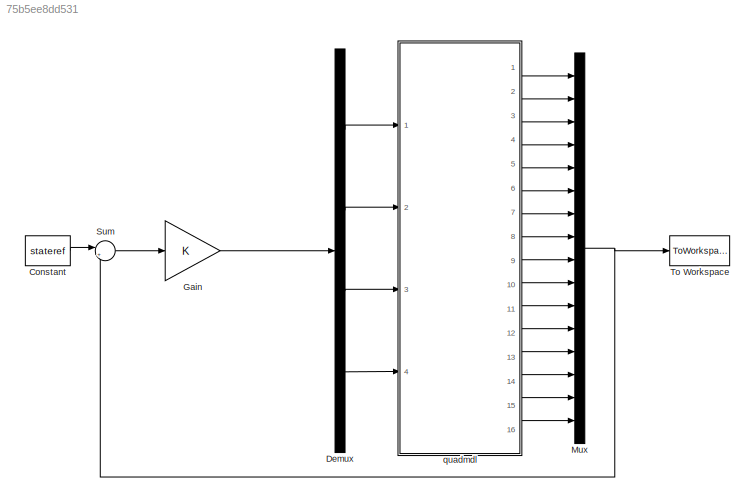
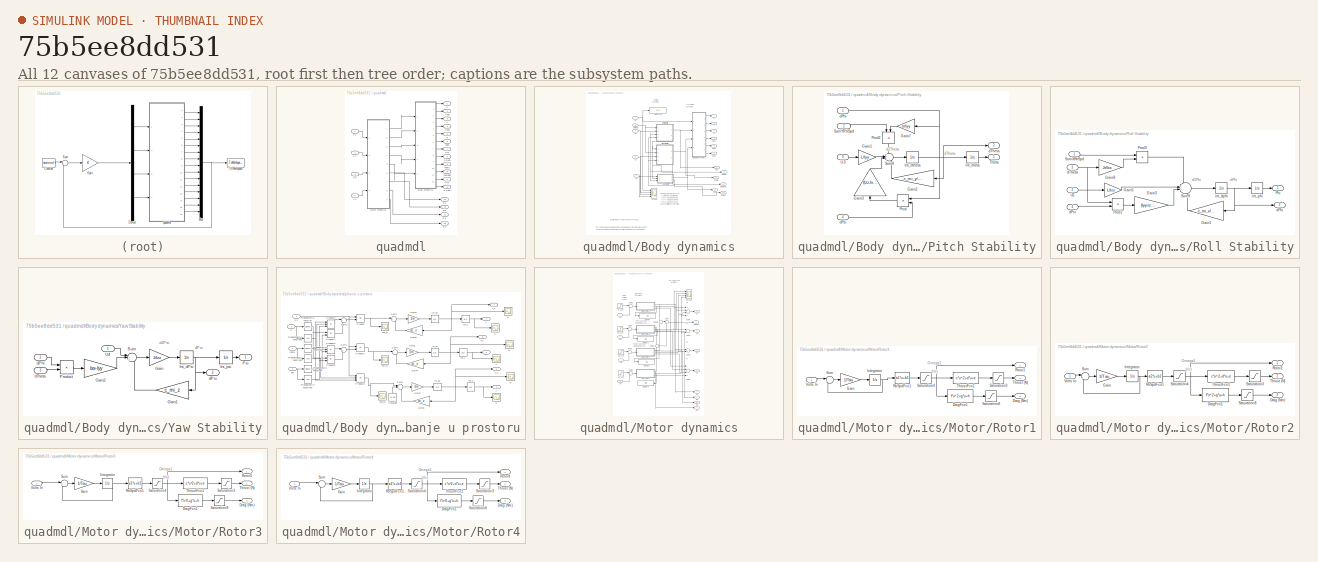
[diagram: thumbnail index - all 12 canvases of the model, root first then tree order]
MODEL slx_75b5ee8dd531
KIND model
CONFIG AbsTol = auto
CONFIG EnableMultiTasking = on
CONFIG FixedStep = auto
CONFIG MaxStep = auto
CONFIG MinStep = auto
CONFIG RelTol = 1e-3
CONFIG SampleTimeConstraint = Unconstrained
CONFIG Solver = ode45
CONFIG SolverName = ode45
CONFIG StartTime = 0.0
CONFIG StopTime = 100
BLOCK [Constant] Constant
  Value = stateref
BLOCK [Demux] Demux
  DisplayOption = bar
  Ports = [1, 4]
BLOCK [Gain] Gain
  Gain = K
  Multiplication = Matrix(K*u) (u vector)
  OutDataTypeStr = Inherit: Inherit via internal rule
  ParamDataTypeStr = Inherit: Inherit via internal rule
  SaturateOnIntegerOverflow = off
BLOCK [Mux] Mux
  DisplayOption = bar
  Inputs = 16
  Ports = [16, 1]
BLOCK [Sum] Sum
  IconShape = round
  InputSameDT = off
  Inputs = |+-
  OutDataTypeStr = Inherit: Inherit via internal rule
  Ports = [2, 1]
  SaturateOnIntegerOverflow = off
BLOCK [ToWorkspace] To Workspace
  FixptAsFi = on
  MaxDataPoints = inf
  Ports = [1]
  SampleTime = -1
  Save2DSignal = 3-D array (concatenate along third dimension)
  SaveFormat = Timeseries
  VariableName = state
BLOCK [SubSystem] quadmdl
  Ports = [4, 16]
  RequestExecContextInheritance = off
  Variant = off
BLOCK [SubSystem] quadmdl/Body dynamics
  Ports = [5, 12]
  RequestExecContextInheritance = off
  Variant = off
BLOCK [Inport] quadmdl/Body dynamics/Omega
  IconDisplay = Port number
  Port = 5
BLOCK [Outport] quadmdl/Body dynamics/Phi
  IconDisplay = Port number
  Port = 7
BLOCK [SubSystem] quadmdl/Body dynamics/Pitch Stability
  Ports = [4, 2]
  RequestExecContextInheritance = off
  Variant = off
BLOCK [Gain] quadmdl/Body dynamics/Pitch Stability/Gain1
  Gain = L/Iyy
  OutDataTypeStr = Inherit: Inherit via internal rule
  ParamDataTypeStr = Inherit: Inherit via internal rule
  SaturateOnIntegerOverflow = off
BLOCK [Gain] quadmdl/Body dynamics/Pitch Stability/Gain2
  Gain = c_mi_y/Iyy
  OutDataTypeStr = Inherit: Inherit via internal rule
  ParamDataTypeStr = Inherit: Inherit via internal rule
  SaturateOnIntegerOverflow = off
BLOCK [Gain] quadmdl/Body dynamics/Pitch Stability/Gain3
  Gain = (Izz-Ixx)/Iyy
  OutDataTypeStr = Inherit: Inherit via internal rule
  ParamDataTypeStr = Inherit: Inherit via internal rule
  SaturateOnIntegerOverflow = off
BLOCK [Gain] quadmdl/Body dynamics/Pitch Stability/Gain7
  Gain = Jr/Iyy
  OutDataTypeStr = Inherit: Inherit via internal rule
  ParamDataTypeStr = Inherit: Inherit via internal rule
  SaturateOnIntegerOverflow = off
BLOCK [Integrator] quadmdl/Body dynamics/Pitch Stability/Int_dtheta
  InitialCondition = dtheta_0
  Ports = [1, 1]
BLOCK [Integrator] quadmdl/Body dynamics/Pitch Stability/Int_theta
  InitialCondition = theta_0
  LowerSaturationLimit = -pi/2
  Ports = [1, 1]
  UpperSaturationLimit = pi/2
BLOCK [Product] quadmdl/Body dynamics/Pitch Stability/Prod
  InputSameDT = off
  OutDataTypeStr = Inherit: Inherit via internal rule
  Ports = [2, 1]
  SaturateOnIntegerOverflow = off
BLOCK [Product] quadmdl/Body dynamics/Pitch Stability/Prod2
  InputSameDT = off
  OutDataTypeStr = Inherit: Inherit via internal rule
  Ports = [2, 1]
  SaturateOnIntegerOverflow = off
BLOCK [Sum] quadmdl/Body dynamics/Pitch Stability/Sum8
  IconShape = round
  InputSameDT = off
  Inputs = +++-
  OutDataTypeStr = Inherit: Inherit via internal rule
  Ports = [4, 1]
  SaturateOnIntegerOverflow = off
BLOCK [Inport] quadmdl/Body dynamics/Pitch Stability/SumYRtrSpd
  IconDisplay = Port number
  Port = 2
BLOCK [Outport] quadmdl/Body dynamics/Pitch Stability/Theta
  IconDisplay = Port number
BLOCK [Inport] quadmdl/Body dynamics/Pitch Stability/U3
  IconDisplay = Port number
  Port = 3
BLOCK [Inport] quadmdl/Body dynamics/Pitch Stability/dPhi
  IconDisplay = Port number
BLOCK [Inport] quadmdl/Body dynamics/Pitch Stability/dPsi
  IconDisplay = Port number
  Port = 4
BLOCK [Outport] quadmdl/Body dynamics/Pitch Stability/dTheta
  IconDisplay = Port number
  Port = 2
BLOCK [Outport] quadmdl/Body dynamics/Psi
  IconDisplay = Port number
  Port = 11
BLOCK [SubSystem] quadmdl/Body dynamics/Roll Stability
  Ports = [4, 2]
  RequestExecContextInheritance = off
  Variant = off
BLOCK [Gain] quadmdl/Body dynamics/Roll Stability/Gain1
  Gain = c_mi_x/Ixx
  OutDataTypeStr = Inherit: Inherit via internal rule
  ParamDataTypeStr = Inherit: Inherit via internal rule
  SaturateOnIntegerOverflow = off
BLOCK [Gain] quadmdl/Body dynamics/Roll Stability/Gain3
  Gain = (Iyy-Izz)/Ixx
  OutDataTypeStr = Inherit: Inherit via internal rule
  ParamDataTypeStr = Inherit: Inherit via internal rule
  SaturateOnIntegerOverflow = off
BLOCK [Gain] quadmdl/Body dynamics/Roll Stability/Gain5
  Gain = L/Ixx
  OutDataTypeStr = Inherit: Inherit via internal rule
  ParamDataTypeStr = Inherit: Inherit via internal rule
  SaturateOnIntegerOverflow = off
BLOCK [Gain] quadmdl/Body dynamics/Roll Stability/Gain8
  Gain = Jr/Ixx
  OutDataTypeStr = Inherit: Inherit via internal rule
  ParamDataTypeStr = Inherit: Inherit via internal rule
  SaturateOnIntegerOverflow = off
BLOCK [Outport] quadmdl/Body dynamics/Roll Stability/Phi
  IconDisplay = Port number
BLOCK [Product] quadmdl/Body dynamics/Roll Stability/Prod1
  InputSameDT = off
  OutDataTypeStr = Inherit: Inherit via internal rule
  Ports = [2, 1]
  SaturateOnIntegerOverflow = off
BLOCK [Product] quadmdl/Body dynamics/Roll Stability/Prod3
  InputSameDT = off
  OutDataTypeStr = Inherit: Inherit via internal rule
  Ports = [2, 1]
  SaturateOnIntegerOverflow = off
BLOCK [Sum] quadmdl/Body dynamics/Roll Stability/Sum9
  IconShape = round
  InputSameDT = off
  Inputs = -++-
  OutDataTypeStr = Inherit: Inherit via internal rule
  Ports = [4, 1]
  SaturateOnIntegerOverflow = off
BLOCK [Inport] quadmdl/Body dynamics/Roll Stability/SumXRtrSpd
  IconDisplay = Port number
BLOCK [Inport] quadmdl/Body dynamics/Roll Stability/U2
  IconDisplay = Port number
  Port = 2
BLOCK [Outport] quadmdl/Body dynamics/Roll Stability/dPhi
  IconDisplay = Port number
  Port = 2
BLOCK [Inport] quadmdl/Body dynamics/Roll Stability/dPsi
  IconDisplay = Port number
  Port = 4
BLOCK [Inport] quadmdl/Body dynamics/Roll Stability/dTheta
  IconDisplay = Port number
  Port = 3
BLOCK [Integrator] quadmdl/Body dynamics/Roll Stability/int_dphi
  InitialCondition = dfi_0
  Ports = [1, 1]
BLOCK [Integrator] quadmdl/Body dynamics/Roll Stability/int_phi
  InitialCondition = fi_0
  LowerSaturationLimit = -pi/2
  Ports = [1, 1]
  UpperSaturationLimit = pi/2
BLOCK [Outport] quadmdl/Body dynamics/Theta
  IconDisplay = Port number
  Port = 9
BLOCK [Scope] quadmdl/Body dynamics/Torque
  NumInputPorts = 4
  Ports = [4]
  ScopeSpecificationString = C++SS(StrPVP('Location','[772, 74, 1096, 662]'),StrPVP('Open','off'),StrPVP('ZoomMode','yonly'),MxPVP('AxesTitles',53,'struct(''axes1'',''%<SignalLabel>'',''axes2'',''%<SignalLabel>'',''axes3'',''%<SignalLabel>'',''axes4'',''%<SignalLabel>'')'),StrPVP('YMin','4.9725~-5~-5~-5'),StrPVP('YMax','5.015~5~5~5'),StrPVP('SaveName','ScopeData17'),StrPVP('DataFormat','StructureWithTime'),StrPVP('LimitDataPo...<+111ch>
BLOCK [Display] quadmdl/Body dynamics/TotalThrust
  Decimation = 1
  Ports = [1]
BLOCK [Inport] quadmdl/Body dynamics/U1
  IconDisplay = Port number
BLOCK [Inport] quadmdl/Body dynamics/U2
  IconDisplay = Port number
  Port = 2
BLOCK [Inport] quadmdl/Body dynamics/U3
  IconDisplay = Port number
  Port = 3
BLOCK [Inport] quadmdl/Body dynamics/U4
  IconDisplay = Port number
  Port = 4
BLOCK [SubSystem] quadmdl/Body dynamics/Yaw Stability
  Ports = [3, 2]
  RequestExecContextInheritance = off
  Variant = off
BLOCK [Gain] quadmdl/Body dynamics/Yaw Stability/Gain
  Gain = 1/Izz
  OutDataTypeStr = Inherit: Inherit via internal rule
  ParamDataTypeStr = Inherit: Inherit via internal rule
  SaturateOnIntegerOverflow = off
BLOCK [Gain] quadmdl/Body dynamics/Yaw Stability/Gain1
  Gain = c_mi_z
  OutDataTypeStr = Inherit: Inherit via internal rule
  ParamDataTypeStr = Inherit: Inherit via internal rule
  SaturateOnIntegerOverflow = off
BLOCK [Gain] quadmdl/Body dynamics/Yaw Stability/Gain2
  Gain = Ixx-Iyy
  OutDataTypeStr = Inherit: Inherit via internal rule
  ParamDataTypeStr = Inherit: Inherit via internal rule
  SaturateOnIntegerOverflow = off
BLOCK [Integrator] quadmdl/Body dynamics/Yaw Stability/Int_dPsi
  InitialCondition = dpsi_0
  Ports = [1, 1]
BLOCK [Integrator] quadmdl/Body dynamics/Yaw Stability/Int_psi
  InitialCondition = psi_0
  Ports = [1, 1]
BLOCK [Product] quadmdl/Body dynamics/Yaw Stability/Product
  InputSameDT = off
  OutDataTypeStr = Inherit: Inherit via internal rule
  Ports = [2, 1]
  SaturateOnIntegerOverflow = off
BLOCK [Outport] quadmdl/Body dynamics/Yaw Stability/Psi
  IconDisplay = Port number
BLOCK [Sum] quadmdl/Body dynamics/Yaw Stability/Sum
  IconShape = round
  InputSameDT = off
  Inputs = |++-
  OutDataTypeStr = Inherit: Inherit via internal rule
  Ports = [3, 1]
  SaturateOnIntegerOverflow = off
BLOCK [Inport] quadmdl/Body dynamics/Yaw Stability/U4
  IconDisplay = Port number
BLOCK [Inport] quadmdl/Body dynamics/Yaw Stability/dPhi
  IconDisplay = Port number
  Port = 2
BLOCK [Outport] quadmdl/Body dynamics/Yaw Stability/dPsi
  IconDisplay = Port number
  Port = 2
BLOCK [Inport] quadmdl/Body dynamics/Yaw Stability/dTheta
  IconDisplay = Port number
  Port = 3
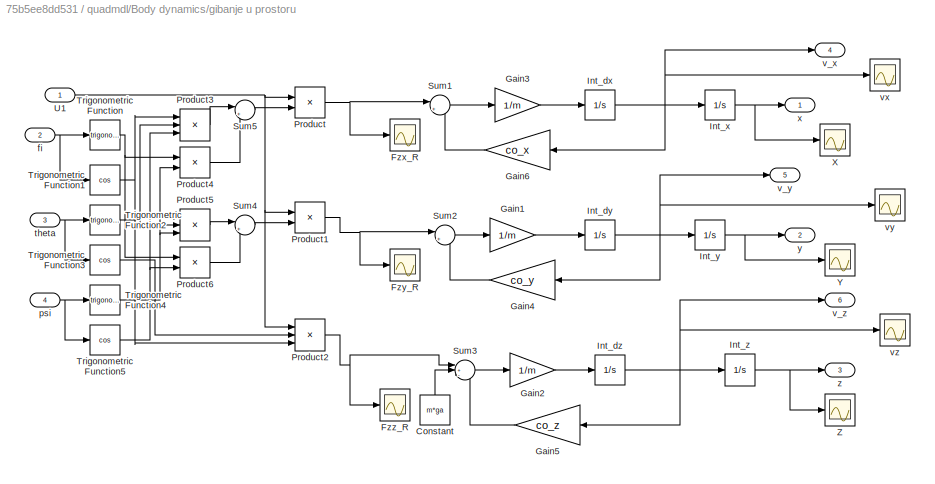
BLOCK [SubSystem] quadmdl/Body dynamics/gibanje u prostoru
  Ports = [4, 6]
  RequestExecContextInheritance = off
  Variant = off
BLOCK [Constant] quadmdl/Body dynamics/gibanje u prostoru/Constant
  Value = m*ga
BLOCK [Scope] quadmdl/Body dynamics/gibanje u prostoru/Fzx_R
  NumInputPorts = 1
  Ports = [1]
  ScopeSpecificationString = C++SS(StrPVP('Location','[188, 355, 512, 594]'),StrPVP('Open','off'),StrPVP('ZoomMode','xonly'),MxPVP('AxesTitles',53,'struct(''axes1'',''%<SignalLabel>'')'),StrPVP('SaveName','ScopeData10'),StrPVP('DataFormat','StructureWithTime'),StrPVP('LimitDataPoints','off'),StrPVP('BlockParamSampleTime','0'),StrPVP('Decimation','1'),StrPVP('BlockParamSampleInput','off'))
BLOCK [Scope] quadmdl/Body dynamics/gibanje u prostoru/Fzy_R
  NumInputPorts = 1
  Ports = [1]
  ScopeSpecificationString = C++SS(StrPVP('Location','[178, 355, 502, 594]'),StrPVP('Open','off'),StrPVP('ZoomMode','xonly'),MxPVP('AxesTitles',53,'struct(''axes1'',''%<SignalLabel>'')'),StrPVP('SaveName','ScopeData24'),StrPVP('DataFormat','StructureWithTime'),StrPVP('LimitDataPoints','off'),StrPVP('BlockParamSampleTime','0'),StrPVP('Decimation','1'),StrPVP('BlockParamSampleInput','off'))
BLOCK [Scope] quadmdl/Body dynamics/gibanje u prostoru/Fzz_R
  NumInputPorts = 1
  Ports = [1]
  ScopeSpecificationString = C++SS(StrPVP('Location','[108, 519, 432, 758]'),StrPVP('Open','off'),StrPVP('ZoomMode','yonly'),MxPVP('AxesTitles',53,'struct(''axes1'',''%<SignalLabel>'')'),StrPVP('YMin','4.9725'),StrPVP('YMax','5.015'),StrPVP('SaveName','ScopeData23'),StrPVP('DataFormat','StructureWithTime'),StrPVP('LimitDataPoints','off'),StrPVP('BlockParamSampleTime','0'),StrPVP('Decimation','1'),StrPVP('BlockParamSampleInput...<+9ch>
BLOCK [Gain] quadmdl/Body dynamics/gibanje u prostoru/Gain1
  Gain = 1/m
  OutDataTypeStr = Inherit: Inherit via internal rule
  ParamDataTypeStr = Inherit: Inherit via internal rule
  SaturateOnIntegerOverflow = off
BLOCK [Gain] quadmdl/Body dynamics/gibanje u prostoru/Gain2
  Gain = 1/m
  OutDataTypeStr = Inherit: Inherit via internal rule
  ParamDataTypeStr = Inherit: Inherit via internal rule
  SaturateOnIntegerOverflow = off
BLOCK [Gain] quadmdl/Body dynamics/gibanje u prostoru/Gain3
  Gain = 1/m
  OutDataTypeStr = Inherit: Inherit via internal rule
  ParamDataTypeStr = Inherit: Inherit via internal rule
  SaturateOnIntegerOverflow = off
BLOCK [Gain] quadmdl/Body dynamics/gibanje u prostoru/Gain4
  Gain = co_y
  OutDataTypeStr = Inherit: Inherit via internal rule
  ParamDataTypeStr = Inherit: Inherit via internal rule
  SaturateOnIntegerOverflow = off
BLOCK [Gain] quadmdl/Body dynamics/gibanje u prostoru/Gain5
  Gain = co_z
  OutDataTypeStr = Inherit: Inherit via internal rule
  ParamDataTypeStr = Inherit: Inherit via internal rule
  SaturateOnIntegerOverflow = off
BLOCK [Gain] quadmdl/Body dynamics/gibanje u prostoru/Gain6
  Gain = co_x
  OutDataTypeStr = Inherit: Inherit via internal rule
  ParamDataTypeStr = Inherit: Inherit via internal rule
  SaturateOnIntegerOverflow = off
BLOCK [Integrator] quadmdl/Body dynamics/gibanje u prostoru/Int_dx
  InitialCondition = dx_0
  LimitOutput = on
  LowerSaturationLimit = -10
  Ports = [1, 1]
  UpperSaturationLimit = 10
BLOCK [Integrator] quadmdl/Body dynamics/gibanje u prostoru/Int_dy
  InitialCondition = dy_0
  LimitOutput = on
  LowerSaturationLimit = -10
  Ports = [1, 1]
  UpperSaturationLimit = 10
BLOCK [Integrator] quadmdl/Body dynamics/gibanje u prostoru/Int_dz
  InitialCondition = dz_0
  LimitOutput = on
  LowerSaturationLimit = -10
  Ports = [1, 1]
  UpperSaturationLimit = 10
BLOCK [Integrator] quadmdl/Body dynamics/gibanje u prostoru/Int_x
  InitialCondition = x_0
  Ports = [1, 1]
BLOCK [Integrator] quadmdl/Body dynamics/gibanje u prostoru/Int_y
  InitialCondition = y_0
  Ports = [1, 1]
BLOCK [Integrator] quadmdl/Body dynamics/gibanje u prostoru/Int_z
  InitialCondition = z_0
  Ports = [1, 1]
BLOCK [Product] quadmdl/Body dynamics/gibanje u prostoru/Product
  InputSameDT = off
  OutDataTypeStr = Inherit: Inherit via internal rule
  Ports = [2, 1]
  SaturateOnIntegerOverflow = off
BLOCK [Product] quadmdl/Body dynamics/gibanje u prostoru/Product1
  InputSameDT = off
  OutDataTypeStr = Inherit: Inherit via internal rule
  Ports = [2, 1]
  SaturateOnIntegerOverflow = off
BLOCK [Product] quadmdl/Body dynamics/gibanje u prostoru/Product2
  InputSameDT = off
  Inputs = 3
  OutDataTypeStr = Inherit: Inherit via internal rule
  Ports = [3, 1]
  SaturateOnIntegerOverflow = off
BLOCK [Product] quadmdl/Body dynamics/gibanje u prostoru/Product3
  InputSameDT = off
  Inputs = 3
  OutDataTypeStr = Inherit: Inherit via internal rule
  Ports = [3, 1]
  SaturateOnIntegerOverflow = off
BLOCK [Product] quadmdl/Body dynamics/gibanje u prostoru/Product4
  InputSameDT = off
  OutDataTypeStr = Inherit: Inherit via internal rule
  Ports = [2, 1]
  SaturateOnIntegerOverflow = off
BLOCK [Product] quadmdl/Body dynamics/gibanje u prostoru/Product5
  InputSameDT = off
  Inputs = 3
  OutDataTypeStr = Inherit: Inherit via internal rule
  Ports = [3, 1]
  SaturateOnIntegerOverflow = off
BLOCK [Product] quadmdl/Body dynamics/gibanje u prostoru/Product6
  InputSameDT = off
  OutDataTypeStr = Inherit: Inherit via internal rule
  Ports = [2, 1]
  SaturateOnIntegerOverflow = off
BLOCK [Sum] quadmdl/Body dynamics/gibanje u prostoru/Sum1
  IconShape = round
  InputSameDT = off
  Inputs = |+-
  OutDataTypeStr = Inherit: Inherit via internal rule
  Ports = [2, 1]
  SaturateOnIntegerOverflow = off
BLOCK [Sum] quadmdl/Body dynamics/gibanje u prostoru/Sum2
  IconShape = round
  InputSameDT = off
  Inputs = |+-
  OutDataTypeStr = Inherit: Inherit via internal rule
  Ports = [2, 1]
  SaturateOnIntegerOverflow = off
BLOCK [Sum] quadmdl/Body dynamics/gibanje u prostoru/Sum3
  IconShape = round
  InputSameDT = off
  Inputs = |+--
  OutDataTypeStr = Inherit: Inherit via internal rule
  Ports = [3, 1]
  SaturateOnIntegerOverflow = off
BLOCK [Sum] quadmdl/Body dynamics/gibanje u prostoru/Sum4
  IconShape = round
  InputSameDT = off
  Inputs = |+-
  OutDataTypeStr = Inherit: Inherit via internal rule
  Ports = [2, 1]
  SaturateOnIntegerOverflow = off
BLOCK [Sum] quadmdl/Body dynamics/gibanje u prostoru/Sum5
  IconShape = round
  InputSameDT = off
  Inputs = |++
  OutDataTypeStr = Inherit: Inherit via internal rule
  Ports = [2, 1]
  SaturateOnIntegerOverflow = off
BLOCK [Trigonometry] quadmdl/Body dynamics/gibanje u prostoru/Trigonometric Function
  Ports = [1, 1]
BLOCK [Trigonometry] quadmdl/Body dynamics/gibanje u prostoru/Trigonometric Function1
  Operator = cos
  Ports = [1, 1]
BLOCK [Trigonometry] quadmdl/Body dynamics/gibanje u prostoru/Trigonometric Function2
  Ports = [1, 1]
BLOCK [Trigonometry] quadmdl/Body dynamics/gibanje u prostoru/Trigonometric Function3
  Operator = cos
  Ports = [1, 1]
BLOCK [Trigonometry] quadmdl/Body dynamics/gibanje u prostoru/Trigonometric Function4
  Ports = [1, 1]
BLOCK [Trigonometry] quadmdl/Body dynamics/gibanje u prostoru/Trigonometric Function5
  Operator = cos
  Ports = [1, 1]
BLOCK [Inport] quadmdl/Body dynamics/gibanje u prostoru/U1
  IconDisplay = Port number
BLOCK [Scope] quadmdl/Body dynamics/gibanje u prostoru/X
  NumInputPorts = 1
  Ports = [1]
  ScopeSpecificationString = C++SS(StrPVP('Location','[164, 205, 488, 444]'),StrPVP('Open','off'),StrPVP('ZoomMode','xonly'),MxPVP('AxesTitles',53,'struct(''axes1'',''%<SignalLabel>'')'),StrPVP('YMin','-95'),StrPVP('YMax','-30'),StrPVP('SaveName','ScopeData14'),StrPVP('DataFormat','StructureWithTime'),StrPVP('LimitDataPoints','off'),StrPVP('BlockParamSampleTime','0'),StrPVP('Decimation','1'),StrPVP('BlockParamSampleInput','of...<+4ch>
BLOCK [Scope] quadmdl/Body dynamics/gibanje u prostoru/Y
  NumInputPorts = 1
  Ports = [1]
  ScopeSpecificationString = C++SS(StrPVP('Location','[164, 205, 488, 444]'),StrPVP('Open','off'),StrPVP('ZoomMode','xonly'),MxPVP('AxesTitles',53,'struct(''axes1'',''%<SignalLabel>'')'),StrPVP('YMin','-95'),StrPVP('YMax','-30'),StrPVP('SaveName','ScopeData11'),StrPVP('DataFormat','StructureWithTime'),StrPVP('LimitDataPoints','off'),StrPVP('BlockParamSampleTime','0'),StrPVP('Decimation','1'),StrPVP('BlockParamSampleInput','of...<+4ch>
BLOCK [Scope] quadmdl/Body dynamics/gibanje u prostoru/Z
  NumInputPorts = 1
  Ports = [1]
  ScopeSpecificationString = C++SS(StrPVP('Location','[441, 519, 765, 758]'),StrPVP('Open','off'),StrPVP('ZoomMode','xonly'),MxPVP('AxesTitles',53,'struct(''axes1'',''%<SignalLabel>'')'),StrPVP('YMin','-95'),StrPVP('YMax','-30'),StrPVP('SaveName','ScopeData34'),StrPVP('DataFormat','StructureWithTime'),StrPVP('LimitDataPoints','off'),StrPVP('BlockParamSampleTime','0'),StrPVP('Decimation','1'),StrPVP('BlockParamSampleInput','of...<+4ch>
BLOCK [Inport] quadmdl/Body dynamics/gibanje u prostoru/fi
  IconDisplay = Port number
  Port = 2
BLOCK [Inport] quadmdl/Body dynamics/gibanje u prostoru/psi
  IconDisplay = Port number
  Port = 4
BLOCK [Inport] quadmdl/Body dynamics/gibanje u prostoru/theta
  IconDisplay = Port number
  Port = 3
BLOCK [Outport] quadmdl/Body dynamics/gibanje u prostoru/v_x
  IconDisplay = Port number
  Port = 4
BLOCK [Outport] quadmdl/Body dynamics/gibanje u prostoru/v_y
  IconDisplay = Port number
  Port = 5
BLOCK [Outport] quadmdl/Body dynamics/gibanje u prostoru/v_z
  IconDisplay = Port number
  Port = 6
BLOCK [Scope] quadmdl/Body dynamics/gibanje u prostoru/vx
  NumInputPorts = 1
  Ports = [1]
  ScopeSpecificationString = C++SS(StrPVP('Location','[51, 268, 479, 593]'),StrPVP('Open','off'),StrPVP('ZoomMode','xonly'),MxPVP('AxesTitles',53,'struct(''axes1'',''%<SignalLabel>'')'),StrPVP('SaveName','ScopeData12'),StrPVP('DataFormat','StructureWithTime'),StrPVP('BlockParamSampleTime','0'),StrPVP('LimitDataPoints','on'),StrPVP('Decimation','1'),StrPVP('BlockParamSampleInput','off'))
BLOCK [Scope] quadmdl/Body dynamics/gibanje u prostoru/vy
  NumInputPorts = 1
  Ports = [1]
  ScopeSpecificationString = C++SS(StrPVP('Location','[51, 268, 479, 593]'),StrPVP('Open','off'),StrPVP('ZoomMode','xonly'),MxPVP('AxesTitles',53,'struct(''axes1'',''%<SignalLabel>'')'),StrPVP('SaveName','ScopeData9'),StrPVP('DataFormat','StructureWithTime'),StrPVP('BlockParamSampleTime','0'),StrPVP('LimitDataPoints','on'),StrPVP('Decimation','1'),StrPVP('BlockParamSampleInput','off'))
BLOCK [Scope] quadmdl/Body dynamics/gibanje u prostoru/vz
  NumInputPorts = 1
  Ports = [1]
  ScopeSpecificationString = C++SS(StrPVP('Location','[51, 268, 479, 593]'),StrPVP('Open','off'),StrPVP('ZoomMode','xonly'),MxPVP('AxesTitles',53,'struct(''axes1'',''%<SignalLabel>'')'),StrPVP('SaveName','ScopeData25'),StrPVP('DataFormat','StructureWithTime'),StrPVP('BlockParamSampleTime','0'),StrPVP('LimitDataPoints','on'),StrPVP('Decimation','1'),StrPVP('BlockParamSampleInput','off'))
BLOCK [Outport] quadmdl/Body dynamics/gibanje u prostoru/x
  IconDisplay = Port number
BLOCK [Outport] quadmdl/Body dynamics/gibanje u prostoru/y
  IconDisplay = Port number
  Port = 2
BLOCK [Outport] quadmdl/Body dynamics/gibanje u prostoru/z
  IconDisplay = Port number
  Port = 3
BLOCK [Outport] quadmdl/Body dynamics/phidot
  IconDisplay = Port number
  Port = 8
BLOCK [Outport] quadmdl/Body dynamics/psidot
  IconDisplay = Port number
  Port = 12
BLOCK [Outport] quadmdl/Body dynamics/thetadot
  IconDisplay = Port number
  Port = 10
BLOCK [Outport] quadmdl/Body dynamics/x
  IconDisplay = Port number
BLOCK [Outport] quadmdl/Body dynamics/xdot
  IconDisplay = Port number
  Port = 2
BLOCK [Outport] quadmdl/Body dynamics/y
  IconDisplay = Port number
  Port = 3
BLOCK [Outport] quadmdl/Body dynamics/ydot
  IconDisplay = Port number
  Port = 4
BLOCK [Outport] quadmdl/Body dynamics/z
  IconDisplay = Port number
  Port = 5
BLOCK [Outport] quadmdl/Body dynamics/zdot
  IconDisplay = Port number
  Port = 6
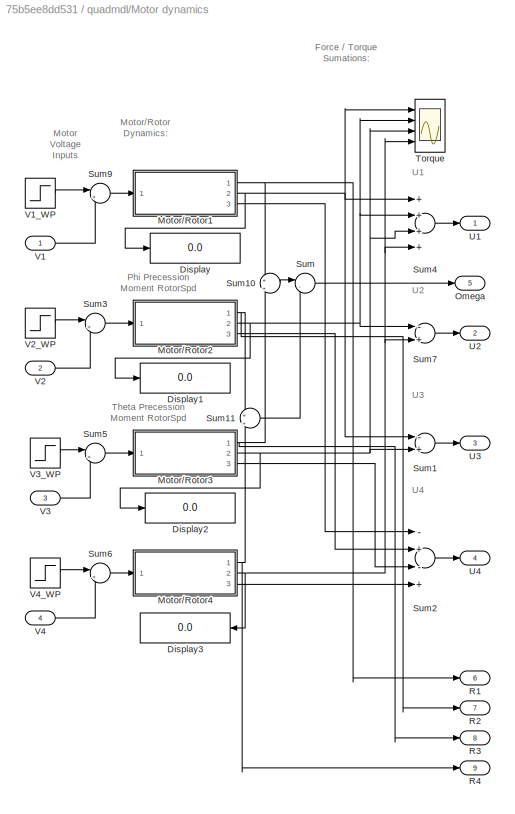
BLOCK [SubSystem] quadmdl/Motor dynamics
  Ports = [4, 9]
  RequestExecContextInheritance = off
  Variant = off
BLOCK [Display] quadmdl/Motor dynamics/Display
  Decimation = 1
  Ports = [1]
BLOCK [Display] quadmdl/Motor dynamics/Display1
  Decimation = 1
  Ports = [1]
BLOCK [Display] quadmdl/Motor dynamics/Display2
  Decimation = 1
  Ports = [1]
BLOCK [Display] quadmdl/Motor dynamics/Display3
  Decimation = 1
  Ports = [1]
BLOCK [SubSystem] quadmdl/Motor dynamics/Motor//Rotor1
  Ports = [1, 3]
  RequestExecContextInheritance = off
  Variant = off
BLOCK [Outport] quadmdl/Motor dynamics/Motor//Rotor1/Drag (Nm)
  IconDisplay = Port number
  Port = 3
BLOCK [Fcn] quadmdl/Motor dynamics/Motor//Rotor1/DragFcn1
  Expr = f*u^2+g*u+h
BLOCK [Gain] quadmdl/Motor dynamics/Motor//Rotor1/Gain
  Gain = 1/Tau
  OutDataTypeStr = Inherit: Inherit via internal rule
  ParamDataTypeStr = Inherit: Inherit via internal rule
  SaturateOnIntegerOverflow = off
BLOCK [Integrator] quadmdl/Motor dynamics/Motor//Rotor1/Integrator
  InitialCondition = d_omega_R10
  Ports = [1, 1]
BLOCK [Outport] quadmdl/Motor dynamics/Motor//Rotor1/Rotor1
  IconDisplay = Port number
BLOCK [Fcn] quadmdl/Motor dynamics/Motor//Rotor1/RtrSpdFcn1
  Expr = a1*u+b1
BLOCK [Saturate] quadmdl/Motor dynamics/Motor//Rotor1/Saturation3
  InputPortMap = u0
  LowerLimit = 0
  Ports = [1, 1]
  UpperLimit = 15
BLOCK [Saturate] quadmdl/Motor dynamics/Motor//Rotor1/Saturation4
  InputPortMap = u0
  LowerLimit = 0
  Ports = [1, 1]
  UpperLimit = 250
BLOCK [Saturate] quadmdl/Motor dynamics/Motor//Rotor1/Saturation8
  InputPortMap = u0
  LowerLimit = 0
  Ports = [1, 1]
  UpperLimit = 1
BLOCK [Sum] quadmdl/Motor dynamics/Motor//Rotor1/Sum
  IconShape = round
  InputSameDT = off
  Inputs = |+-
  OutDataTypeStr = Inherit: Inherit via internal rule
  Ports = [2, 1]
  SaturateOnIntegerOverflow = off
BLOCK [Outport] quadmdl/Motor dynamics/Motor//Rotor1/Thrust (N)
  IconDisplay = Port number
  Port = 2
BLOCK [Fcn] quadmdl/Motor dynamics/Motor//Rotor1/ThrustFcn1
  Expr = c*u^2+d*u+e
BLOCK [Inport] quadmdl/Motor dynamics/Motor//Rotor1/Volts In
  IconDisplay = Port number
BLOCK [SubSystem] quadmdl/Motor dynamics/Motor//Rotor2
  Ports = [1, 3]
  RequestExecContextInheritance = off
  Variant = off
BLOCK [Outport] quadmdl/Motor dynamics/Motor//Rotor2/Drag (Nm)
  IconDisplay = Port number
  Port = 3
BLOCK [Fcn] quadmdl/Motor dynamics/Motor//Rotor2/DragFcn1
  Expr = f*u^2+g*u+h
BLOCK [Gain] quadmdl/Motor dynamics/Motor//Rotor2/Gain
  Gain = 1/Tau
  OutDataTypeStr = Inherit: Inherit via internal rule
  ParamDataTypeStr = Inherit: Inherit via internal rule
  SaturateOnIntegerOverflow = off
BLOCK [Integrator] quadmdl/Motor dynamics/Motor//Rotor2/Integrator
  InitialCondition = d_omega_R20
  Ports = [1, 1]
BLOCK [Outport] quadmdl/Motor dynamics/Motor//Rotor2/Rotor2
  IconDisplay = Port number
BLOCK [Fcn] quadmdl/Motor dynamics/Motor//Rotor2/RtrSpdFcn1
  Expr = a2*u+b2
BLOCK [Saturate] quadmdl/Motor dynamics/Motor//Rotor2/Saturation3
  InputPortMap = u0
  LowerLimit = 0
  Ports = [1, 1]
  UpperLimit = 15
BLOCK [Saturate] quadmdl/Motor dynamics/Motor//Rotor2/Saturation4
  InputPortMap = u0
  LowerLimit = 0
  Ports = [1, 1]
  UpperLimit = 250
BLOCK [Saturate] quadmdl/Motor dynamics/Motor//Rotor2/Saturation8
  InputPortMap = u0
  LowerLimit = 0
  Ports = [1, 1]
  UpperLimit = 1
BLOCK [Sum] quadmdl/Motor dynamics/Motor//Rotor2/Sum
  IconShape = round
  InputSameDT = off
  Inputs = |+-
  OutDataTypeStr = Inherit: Inherit via internal rule
  Ports = [2, 1]
  SaturateOnIntegerOverflow = off
BLOCK [Outport] quadmdl/Motor dynamics/Motor//Rotor2/Thrust (N)
  IconDisplay = Port number
  Port = 2
BLOCK [Fcn] quadmdl/Motor dynamics/Motor//Rotor2/ThrustFcn1
  Expr = c*u^2+d*u+e
BLOCK [Inport] quadmdl/Motor dynamics/Motor//Rotor2/Volts In
  IconDisplay = Port number
BLOCK [SubSystem] quadmdl/Motor dynamics/Motor//Rotor3
  Ports = [1, 3]
  RequestExecContextInheritance = off
  Variant = off
BLOCK [Outport] quadmdl/Motor dynamics/Motor//Rotor3/Drag (Nm)
  IconDisplay = Port number
  Port = 3
BLOCK [Fcn] quadmdl/Motor dynamics/Motor//Rotor3/DragFcn1
  Expr = f*u^2+g*u+h
BLOCK [Gain] quadmdl/Motor dynamics/Motor//Rotor3/Gain
  Gain = 1/Tau
  OutDataTypeStr = Inherit: Inherit via internal rule
  ParamDataTypeStr = Inherit: Inherit via internal rule
  SaturateOnIntegerOverflow = off
BLOCK [Integrator] quadmdl/Motor dynamics/Motor//Rotor3/Integrator
  InitialCondition = d_omega_R30
  Ports = [1, 1]
BLOCK [Outport] quadmdl/Motor dynamics/Motor//Rotor3/Rotor3
  IconDisplay = Port number
BLOCK [Fcn] quadmdl/Motor dynamics/Motor//Rotor3/RtrSpdFcn1
  Expr = a3*u+b3
BLOCK [Saturate] quadmdl/Motor dynamics/Motor//Rotor3/Saturation3
  InputPortMap = u0
  LowerLimit = 0
  Ports = [1, 1]
  UpperLimit = 15
BLOCK [Saturate] quadmdl/Motor dynamics/Motor//Rotor3/Saturation4
  InputPortMap = u0
  LowerLimit = 0
  Ports = [1, 1]
  UpperLimit = 250
BLOCK [Saturate] quadmdl/Motor dynamics/Motor//Rotor3/Saturation8
  InputPortMap = u0
  LowerLimit = 0
  Ports = [1, 1]
  UpperLimit = 1
BLOCK [Sum] quadmdl/Motor dynamics/Motor//Rotor3/Sum
  IconShape = round
  InputSameDT = off
  Inputs = |+-
  OutDataTypeStr = Inherit: Inherit via internal rule
  Ports = [2, 1]
  SaturateOnIntegerOverflow = off
BLOCK [Outport] quadmdl/Motor dynamics/Motor//Rotor3/Thrust (N)
  IconDisplay = Port number
  Port = 2
BLOCK [Fcn] quadmdl/Motor dynamics/Motor//Rotor3/ThrustFcn1
  Expr = c*u^2+d*u+e
BLOCK [Inport] quadmdl/Motor dynamics/Motor//Rotor3/Volts In
  IconDisplay = Port number
BLOCK [SubSystem] quadmdl/Motor dynamics/Motor//Rotor4
  Ports = [1, 3]
  RequestExecContextInheritance = off
  Variant = off
BLOCK [Outport] quadmdl/Motor dynamics/Motor//Rotor4/Drag (Nm)
  IconDisplay = Port number
  Port = 3
BLOCK [Fcn] quadmdl/Motor dynamics/Motor//Rotor4/DragFcn1
  Expr = f*u^2+g*u+h
BLOCK [Gain] quadmdl/Motor dynamics/Motor//Rotor4/Gain
  Gain = 1/Tau
  OutDataTypeStr = Inherit: Inherit via internal rule
  ParamDataTypeStr = Inherit: Inherit via internal rule
  SaturateOnIntegerOverflow = off
BLOCK [Integrator] quadmdl/Motor dynamics/Motor//Rotor4/Integrator
  InitialCondition = d_omega_R40
  Ports = [1, 1]
BLOCK [Outport] quadmdl/Motor dynamics/Motor//Rotor4/Rotor4
  IconDisplay = Port number
BLOCK [Fcn] quadmdl/Motor dynamics/Motor//Rotor4/RtrSpdFcn1
  Expr = a4*u+b4
BLOCK [Saturate] quadmdl/Motor dynamics/Motor//Rotor4/Saturation3
  InputPortMap = u0
  LowerLimit = 0
  Ports = [1, 1]
  UpperLimit = 15
BLOCK [Saturate] quadmdl/Motor dynamics/Motor//Rotor4/Saturation4
  InputPortMap = u0
  LowerLimit = 0
  Ports = [1, 1]
  UpperLimit = 250
BLOCK [Saturate] quadmdl/Motor dynamics/Motor//Rotor4/Saturation8
  InputPortMap = u0
  LowerLimit = 0
  Ports = [1, 1]
  UpperLimit = 1
BLOCK [Sum] quadmdl/Motor dynamics/Motor//Rotor4/Sum
  IconShape = round
  InputSameDT = off
  Inputs = |+-
  OutDataTypeStr = Inherit: Inherit via internal rule
  Ports = [2, 1]
  SaturateOnIntegerOverflow = off
BLOCK [Outport] quadmdl/Motor dynamics/Motor//Rotor4/Thrust (N)
  IconDisplay = Port number
  Port = 2
BLOCK [Fcn] quadmdl/Motor dynamics/Motor//Rotor4/ThrustFcn1
  Expr = c*u^2+d*u+e
BLOCK [Inport] quadmdl/Motor dynamics/Motor//Rotor4/Volts In
  IconDisplay = Port number
BLOCK [Outport] quadmdl/Motor dynamics/Omega
  IconDisplay = Port number
  Port = 5
BLOCK [Outport] quadmdl/Motor dynamics/R1
  IconDisplay = Port number
  Port = 6
BLOCK [Outport] quadmdl/Motor dynamics/R2
  IconDisplay = Port number
  Port = 7
BLOCK [Outport] quadmdl/Motor dynamics/R3
  IconDisplay = Port number
  Port = 8
BLOCK [Outport] quadmdl/Motor dynamics/R4
  IconDisplay = Port number
  Port = 9
BLOCK [Sum] quadmdl/Motor dynamics/Sum
  IconShape = round
  InputSameDT = off
  Inputs = |-+
  OutDataTypeStr = Inherit: Inherit via internal rule
  Ports = [2, 1]
  SaturateOnIntegerOverflow = off
BLOCK [Sum] quadmdl/Motor dynamics/Sum1
  InputSameDT = off
  Inputs = -+
  OutDataTypeStr = Inherit: Inherit via internal rule
  Ports = [2, 1]
  SaturateOnIntegerOverflow = off
BLOCK [Sum] quadmdl/Motor dynamics/Sum10
  IconShape = round
  InputSameDT = off
  Inputs = +|+
  OutDataTypeStr = Inherit: Inherit via internal rule
  Ports = [2, 1]
  SaturateOnIntegerOverflow = off
BLOCK [Sum] quadmdl/Motor dynamics/Sum11
  IconShape = round
  InputSameDT = off
  Inputs = +|+
  OutDataTypeStr = Inherit: Inherit via internal rule
  Ports = [2, 1]
  SaturateOnIntegerOverflow = off
BLOCK [Sum] quadmdl/Motor dynamics/Sum2
  InputSameDT = off
  Inputs = -+-+
  OutDataTypeStr = Inherit: Inherit via internal rule
  Ports = [4, 1]
  SaturateOnIntegerOverflow = off
BLOCK [Sum] quadmdl/Motor dynamics/Sum3
  IconShape = round
  InputSameDT = off
  Inputs = |++
  OutDataTypeStr = Inherit: Inherit via internal rule
  Ports = [2, 1]
  SaturateOnIntegerOverflow = off
BLOCK [Sum] quadmdl/Motor dynamics/Sum4
  InputSameDT = off
  Inputs = ++++
  OutDataTypeStr = Inherit: Inherit via internal rule
  Ports = [4, 1]
  SaturateOnIntegerOverflow = off
BLOCK [Sum] quadmdl/Motor dynamics/Sum5
  IconShape = round
  InputSameDT = off
  Inputs = |++
  OutDataTypeStr = Inherit: Inherit via internal rule
  Ports = [2, 1]
  SaturateOnIntegerOverflow = off
BLOCK [Sum] quadmdl/Motor dynamics/Sum6
  IconShape = round
  InputSameDT = off
  Inputs = |++
  OutDataTypeStr = Inherit: Inherit via internal rule
  Ports = [2, 1]
  SaturateOnIntegerOverflow = off
BLOCK [Sum] quadmdl/Motor dynamics/Sum7
  InputSameDT = off
  Inputs = -+
  OutDataTypeStr = Inherit: Inherit via internal rule
  Ports = [2, 1]
  SaturateOnIntegerOverflow = off
BLOCK [Sum] quadmdl/Motor dynamics/Sum9
  IconShape = round
  InputSameDT = off
  Inputs = |++
  OutDataTypeStr = Inherit: Inherit via internal rule
  Ports = [2, 1]
  SaturateOnIntegerOverflow = off
BLOCK [Scope] quadmdl/Motor dynamics/Torque
  NumInputPorts = 4
  Ports = [4]
  ScopeSpecificationString = C++SS(StrPVP('Location','[772, 74, 1096, 662]'),StrPVP('Open','off'),StrPVP('ZoomMode','yonly'),MxPVP('AxesTitles',53,'struct(''axes1'',''%<SignalLabel>'',''axes2'',''%<SignalLabel>'',''axes3'',''%<SignalLabel>'',''axes4'',''%<SignalLabel>'')'),StrPVP('YMin','4.9725~-5~-5~-5'),StrPVP('YMax','5.015~5~5~5'),StrPVP('SaveName','ScopeData18'),StrPVP('DataFormat','StructureWithTime'),StrPVP('LimitDataPo...<+111ch>
BLOCK [Outport] quadmdl/Motor dynamics/U1
  IconDisplay = Port number
BLOCK [Outport] quadmdl/Motor dynamics/U2
  IconDisplay = Port number
  Port = 2
BLOCK [Outport] quadmdl/Motor dynamics/U3
  IconDisplay = Port number
  Port = 3
BLOCK [Outport] quadmdl/Motor dynamics/U4
  IconDisplay = Port number
  Port = 4
BLOCK [Inport] quadmdl/Motor dynamics/V1
  IconDisplay = Port number
BLOCK [Step] quadmdl/Motor dynamics/V1_WP
  After = V1_WP
  Before = V1_WP
  SampleTime = 0
  Time = 0
BLOCK [Inport] quadmdl/Motor dynamics/V2
  IconDisplay = Port number
  Port = 2
BLOCK [Step] quadmdl/Motor dynamics/V2_WP
  After = V2_WP
  Before = V2_WP
  SampleTime = 0
  Time = 0
BLOCK [Inport] quadmdl/Motor dynamics/V3
  IconDisplay = Port number
  Port = 3
BLOCK [Step] quadmdl/Motor dynamics/V3_WP
  After = V3_WP
  Before = V3_WP
  SampleTime = 0
  Time = 0
BLOCK [Inport] quadmdl/Motor dynamics/V4
  IconDisplay = Port number
  Port = 4
BLOCK [Step] quadmdl/Motor dynamics/V4_WP
  After = V4_WP
  Before = V4_WP
  SampleTime = 0
  Time = 0
BLOCK [Outport] quadmdl/Phi
  IconDisplay = Port number
  Port = 7
BLOCK [Outport] quadmdl/Phidot
  IconDisplay = Port number
  Port = 8
BLOCK [Outport] quadmdl/Psi
  IconDisplay = Port number
  Port = 11
BLOCK [Outport] quadmdl/Psidot
  IconDisplay = Port number
  Port = 12
BLOCK [Outport] quadmdl/R1
  IconDisplay = Port number
  Port = 13
BLOCK [Outport] quadmdl/R2
  IconDisplay = Port number
  Port = 14
BLOCK [Outport] quadmdl/R3
  IconDisplay = Port number
  Port = 15
BLOCK [Outport] quadmdl/R4
  IconDisplay = Port number
  Port = 16
BLOCK [Outport] quadmdl/Theta
  IconDisplay = Port number
  Port = 9
BLOCK [Outport] quadmdl/Thetadot
  IconDisplay = Port number
  Port = 10
BLOCK [Inport] quadmdl/V1
  IconDisplay = Port number
BLOCK [Inport] quadmdl/V2
  IconDisplay = Port number
  Port = 2
BLOCK [Inport] quadmdl/V3
  IconDisplay = Port number
  Port = 3
BLOCK [Inport] quadmdl/V4
  IconDisplay = Port number
  Port = 4
BLOCK [Outport] quadmdl/X
  IconDisplay = Port number
BLOCK [Outport] quadmdl/Xdot
  IconDisplay = Port number
  Port = 2
BLOCK [Outport] quadmdl/Y
  IconDisplay = Port number
  Port = 3
BLOCK [Outport] quadmdl/Ydpt
  IconDisplay = Port number
  Port = 4
BLOCK [Outport] quadmdl/Z
  IconDisplay = Port number
  Port = 5
BLOCK [Outport] quadmdl/Zdot
  IconDisplay = Port number
  Port = 6
ANNOTATION quadmdl/Body dynamics: 7/24-31/09 Paul Schanwald: Nonlinear Model of Quadrotor Helicopter; 7/25/09 Ivana Palunko: Version 2 of the model Derived from: S. Bouabdallah, et al., "Dynamic Modeling of UAVs", Ecole Polytechnique Federale de Lausanne, 5/2006
ANNOTATION quadmdl/Body dynamics: Inertia & Body Frames = North-West-Up
ANNOTATION quadmdl/Body dynamics: Phi = Roll; Theta = Pitch; Psi = Yaw L = Moment Arm, CG to Rotor Ixx = x-axis Body Inertia Iyy = y-axis Body Inertia Izz = z-axis Body Inertia ga = gravitation acceleration m = total mass of Quadrotor Jr = Rotor Inertia a,b = Volts-to-Rotor Speed Consts c,d,e = RtrSpd-to-Thrust Fcn Consts f,g,h = RtrSpd-to-Drag Fcn Consts Tau = Motor Time Const
ANNOTATION quadmdl/Body dynamics: Rotation Dynamics:
ANNOTATION quadmdl/Body dynamics: Translation Dynamics:
ANNOTATION quadmdl/Body dynamics/Pitch Stability: d2Theta
ANNOTATION quadmdl/Body dynamics/Pitch Stability: dTheta
ANNOTATION quadmdl/Body dynamics/Roll Stability: d2Phi
ANNOTATION quadmdl/Body dynamics/Roll Stability: dPhi
ANNOTATION quadmdl/Body dynamics/Yaw Stability: d2Psi
ANNOTATION quadmdl/Body dynamics/Yaw Stability: dPsi
ANNOTATION quadmdl/Motor dynamics: Force / Torque Sumations:
ANNOTATION quadmdl/Motor dynamics: Motor Voltage Inputs
ANNOTATION quadmdl/Motor dynamics: Motor/Rotor Dynamics:
ANNOTATION quadmdl/Motor dynamics: Phi Precession Moment RotorSpd
ANNOTATION quadmdl/Motor dynamics: Theta Precession Moment RotorSpd
ANNOTATION quadmdl/Motor dynamics: U1
ANNOTATION quadmdl/Motor dynamics: U2
ANNOTATION quadmdl/Motor dynamics: U3
ANNOTATION quadmdl/Motor dynamics: U4
ANNOTATION quadmdl/Motor dynamics/Motor//Rotor1: Omega1 (r/s)
ANNOTATION quadmdl/Motor dynamics/Motor//Rotor2: Omega1 (r/s)
ANNOTATION quadmdl/Motor dynamics/Motor//Rotor3: Omega1 (r/s)
ANNOTATION quadmdl/Motor dynamics/Motor//Rotor4: Omega1 (r/s)
LINE Constant:1 -> Sum:1
LINE Demux:1 -> quadmdl:1
LINE Demux:2 -> quadmdl:2
LINE Demux:3 -> quadmdl:3
LINE Demux:4 -> quadmdl:4
LINE Gain:1 -> Demux:1
NET Mux:1 -> Sum:2, To Workspace:1
LINE Sum:1 -> Gain:1
NET quadmdl/Body dynamics/Omega:1 -> quadmdl/Body dynamics/Pitch Stability:2, quadmdl/Body dynamics/Roll Stability:1
LINE quadmdl/Body dynamics/Pitch Stability/Gain1:1 -> quadmdl/Body dynamics/Pitch Stability/Sum8:2
LINE quadmdl/Body dynamics/Pitch Stability/Gain2:1 -> quadmdl/Body dynamics/Pitch Stability/Sum8:4
LINE quadmdl/Body dynamics/Pitch Stability/Gain3:1 -> quadmdl/Body dynamics/Pitch Stability/Sum8:3
LINE quadmdl/Body dynamics/Pitch Stability/Gain7:1 -> quadmdl/Body dynamics/Pitch Stability/Prod2:2
NET quadmdl/Body dynamics/Pitch Stability/Int_dtheta:1 -> quadmdl/Body dynamics/Pitch Stability/Gain2:1, quadmdl/Body dynamics/Pitch Stability/Int_theta:1, quadmdl/Body dynamics/Pitch Stability/dTheta:1
LINE quadmdl/Body dynamics/Pitch Stability/Int_theta:1 -> quadmdl/Body dynamics/Pitch Stability/Theta:1
LINE quadmdl/Body dynamics/Pitch Stability/Prod2:1 -> quadmdl/Body dynamics/Pitch Stability/Sum8:1
LINE quadmdl/Body dynamics/Pitch Stability/Prod:1 -> quadmdl/Body dynamics/Pitch Stability/Gain3:1
LINE quadmdl/Body dynamics/Pitch Stability/Sum8:1 -> quadmdl/Body dynamics/Pitch Stability/Int_dtheta:1
LINE quadmdl/Body dynamics/Pitch Stability/SumYRtrSpd:1 -> quadmdl/Body dynamics/Pitch Stability/Prod2:1
LINE quadmdl/Body dynamics/Pitch Stability/U3:1 -> quadmdl/Body dynamics/Pitch Stability/Gain1:1
NET quadmdl/Body dynamics/Pitch Stability/dPhi:1 -> quadmdl/Body dynamics/Pitch Stability/Gain7:1, quadmdl/Body dynamics/Pitch Stability/Prod:1
LINE quadmdl/Body dynamics/Pitch Stability/dPsi:1 -> quadmdl/Body dynamics/Pitch Stability/Prod:2
NET quadmdl/Body dynamics/Pitch Stability:1 -> quadmdl/Body dynamics/Theta:1, quadmdl/Body dynamics/gibanje u prostoru:3
NET quadmdl/Body dynamics/Pitch Stability:2 -> quadmdl/Body dynamics/Roll Stability:3, quadmdl/Body dynamics/Yaw Stability:3, quadmdl/Body dynamics/thetadot:1
LINE quadmdl/Body dynamics/Roll Stability/Gain1:1 -> quadmdl/Body dynamics/Roll Stability/Sum9:4
LINE quadmdl/Body dynamics/Roll Stability/Gain3:1 -> quadmdl/Body dynamics/Roll Stability/Sum9:3
LINE quadmdl/Body dynamics/Roll Stability/Gain5:1 -> quadmdl/Body dynamics/Roll Stability/Sum9:2
LINE quadmdl/Body dynamics/Roll Stability/Gain8:1 -> quadmdl/Body dynamics/Roll Stability/Prod3:2
LINE quadmdl/Body dynamics/Roll Stability/Prod1:1 -> quadmdl/Body dynamics/Roll Stability/Gain3:1
LINE quadmdl/Body dynamics/Roll Stability/Prod3:1 -> quadmdl/Body dynamics/Roll Stability/Sum9:1
LINE quadmdl/Body dynamics/Roll Stability/Sum9:1 -> quadmdl/Body dynamics/Roll Stability/int_dphi:1
LINE quadmdl/Body dynamics/Roll Stability/SumXRtrSpd:1 -> quadmdl/Body dynamics/Roll Stability/Prod3:1
LINE quadmdl/Body dynamics/Roll Stability/U2:1 -> quadmdl/Body dynamics/Roll Stability/Gain5:1
LINE quadmdl/Body dynamics/Roll Stability/dPsi:1 -> quadmdl/Body dynamics/Roll Stability/Prod1:2
NET quadmdl/Body dynamics/Roll Stability/dTheta:1 -> quadmdl/Body dynamics/Roll Stability/Gain8:1, quadmdl/Body dynamics/Roll Stability/Prod1:1
NET quadmdl/Body dynamics/Roll Stability/int_dphi:1 -> quadmdl/Body dynamics/Roll Stability/Gain1:1, quadmdl/Body dynamics/Roll Stability/dPhi:1, quadmdl/Body dynamics/Roll Stability/int_phi:1
LINE quadmdl/Body dynamics/Roll Stability/int_phi:1 -> quadmdl/Body dynamics/Roll Stability/Phi:1
NET quadmdl/Body dynamics/Roll Stability:1 -> quadmdl/Body dynamics/Phi:1, quadmdl/Body dynamics/gibanje u prostoru:2
NET quadmdl/Body dynamics/Roll Stability:2 -> quadmdl/Body dynamics/Pitch Stability:1, quadmdl/Body dynamics/Yaw Stability:2, quadmdl/Body dynamics/phidot:1
NET quadmdl/Body dynamics/U1:1 -> quadmdl/Body dynamics/Torque:1, quadmdl/Body dynamics/TotalThrust:1, quadmdl/Body dynamics/gibanje u prostoru:1
NET quadmdl/Body dynamics/U2:1 -> quadmdl/Body dynamics/Roll Stability:2, quadmdl/Body dynamics/Torque:2
NET quadmdl/Body dynamics/U3:1 -> quadmdl/Body dynamics/Pitch Stability:3, quadmdl/Body dynamics/Torque:3
NET quadmdl/Body dynamics/U4:1 -> quadmdl/Body dynamics/Torque:4, quadmdl/Body dynamics/Yaw Stability:1
LINE quadmdl/Body dynamics/Yaw Stability/Gain1:1 -> quadmdl/Body dynamics/Yaw Stability/Sum:3
LINE quadmdl/Body dynamics/Yaw Stability/Gain2:1 -> quadmdl/Body dynamics/Yaw Stability/Sum:2
LINE quadmdl/Body dynamics/Yaw Stability/Gain:1 -> quadmdl/Body dynamics/Yaw Stability/Int_dPsi:1
NET quadmdl/Body dynamics/Yaw Stability/Int_dPsi:1 -> quadmdl/Body dynamics/Yaw Stability/Gain1:1, quadmdl/Body dynamics/Yaw Stability/Int_psi:1, quadmdl/Body dynamics/Yaw Stability/dPsi:1
LINE quadmdl/Body dynamics/Yaw Stability/Int_psi:1 -> quadmdl/Body dynamics/Yaw Stability/Psi:1
LINE quadmdl/Body dynamics/Yaw Stability/Product:1 -> quadmdl/Body dynamics/Yaw Stability/Gain2:1
LINE quadmdl/Body dynamics/Yaw Stability/Sum:1 -> quadmdl/Body dynamics/Yaw Stability/Gain:1
LINE quadmdl/Body dynamics/Yaw Stability/U4:1 -> quadmdl/Body dynamics/Yaw Stability/Sum:1
LINE quadmdl/Body dynamics/Yaw Stability/dPhi:1 -> quadmdl/Body dynamics/Yaw Stability/Product:1
LINE quadmdl/Body dynamics/Yaw Stability/dTheta:1 -> quadmdl/Body dynamics/Yaw Stability/Product:2
NET quadmdl/Body dynamics/Yaw Stability:1 -> quadmdl/Body dynamics/Psi:1, quadmdl/Body dynamics/gibanje u prostoru:4
NET quadmdl/Body dynamics/Yaw Stability:2 -> quadmdl/Body dynamics/Pitch Stability:4, quadmdl/Body dynamics/Roll Stability:4, quadmdl/Body dynamics/psidot:1
LINE quadmdl/Body dynamics/gibanje u prostoru/Constant:1 -> quadmdl/Body dynamics/gibanje u prostoru/Sum3:2
LINE quadmdl/Body dynamics/gibanje u prostoru/Gain1:1 -> quadmdl/Body dynamics/gibanje u prostoru/Int_dy:1
LINE quadmdl/Body dynamics/gibanje u prostoru/Gain2:1 -> quadmdl/Body dynamics/gibanje u prostoru/Int_dz:1
LINE quadmdl/Body dynamics/gibanje u prostoru/Gain3:1 -> quadmdl/Body dynamics/gibanje u prostoru/Int_dx:1
LINE quadmdl/Body dynamics/gibanje u prostoru/Gain4:1 -> quadmdl/Body dynamics/gibanje u prostoru/Sum2:2
LINE quadmdl/Body dynamics/gibanje u prostoru/Gain5:1 -> quadmdl/Body dynamics/gibanje u prostoru/Sum3:3
LINE quadmdl/Body dynamics/gibanje u prostoru/Gain6:1 -> quadmdl/Body dynamics/gibanje u prostoru/Sum1:2
NET quadmdl/Body dynamics/gibanje u prostoru/Int_dx:1 -> quadmdl/Body dynamics/gibanje u prostoru/Gain6:1, quadmdl/Body dynamics/gibanje u prostoru/Int_x:1, quadmdl/Body dynamics/gibanje u prostoru/v_x:1, quadmdl/Body dynamics/gibanje u prostoru/vx:1
NET quadmdl/Body dynamics/gibanje u prostoru/Int_dy:1 -> quadmdl/Body dynamics/gibanje u prostoru/Gain4:1, quadmdl/Body dynamics/gibanje u prostoru/Int_y:1, quadmdl/Body dynamics/gibanje u prostoru/v_y:1, quadmdl/Body dynamics/gibanje u prostoru/vy:1
NET quadmdl/Body dynamics/gibanje u prostoru/Int_dz:1 -> quadmdl/Body dynamics/gibanje u prostoru/Gain5:1, quadmdl/Body dynamics/gibanje u prostoru/Int_z:1, quadmdl/Body dynamics/gibanje u prostoru/v_z:1, quadmdl/Body dynamics/gibanje u prostoru/vz:1
NET quadmdl/Body dynamics/gibanje u prostoru/Int_x:1 -> quadmdl/Body dynamics/gibanje u prostoru/X:1, quadmdl/Body dynamics/gibanje u prostoru/x:1
NET quadmdl/Body dynamics/gibanje u prostoru/Int_y:1 -> quadmdl/Body dynamics/gibanje u prostoru/Y:1, quadmdl/Body dynamics/gibanje u prostoru/y:1
NET quadmdl/Body dynamics/gibanje u prostoru/Int_z:1 -> quadmdl/Body dynamics/gibanje u prostoru/Z:1, quadmdl/Body dynamics/gibanje u prostoru/z:1
NET quadmdl/Body dynamics/gibanje u prostoru/Product1:1 -> quadmdl/Body dynamics/gibanje u prostoru/Fzy_R:1, quadmdl/Body dynamics/gibanje u prostoru/Sum2:1
NET quadmdl/Body dynamics/gibanje u prostoru/Product2:1 -> quadmdl/Body dynamics/gibanje u prostoru/Fzz_R:1, quadmdl/Body dynamics/gibanje u prostoru/Sum3:1
LINE quadmdl/Body dynamics/gibanje u prostoru/Product3:1 -> quadmdl/Body dynamics/gibanje u prostoru/Sum5:1
LINE quadmdl/Body dynamics/gibanje u prostoru/Product4:1 -> quadmdl/Body dynamics/gibanje u prostoru/Sum5:2
LINE quadmdl/Body dynamics/gibanje u prostoru/Product5:1 -> quadmdl/Body dynamics/gibanje u prostoru/Sum4:1
LINE quadmdl/Body dynamics/gibanje u prostoru/Product6:1 -> quadmdl/Body dynamics/gibanje u prostoru/Sum4:2
NET quadmdl/Body dynamics/gibanje u prostoru/Product:1 -> quadmdl/Body dynamics/gibanje u prostoru/Fzx_R:1, quadmdl/Body dynamics/gibanje u prostoru/Sum1:1
LINE quadmdl/Body dynamics/gibanje u prostoru/Sum1:1 -> quadmdl/Body dynamics/gibanje u prostoru/Gain3:1
LINE quadmdl/Body dynamics/gibanje u prostoru/Sum2:1 -> quadmdl/Body dynamics/gibanje u prostoru/Gain1:1
LINE quadmdl/Body dynamics/gibanje u prostoru/Sum3:1 -> quadmdl/Body dynamics/gibanje u prostoru/Gain2:1
LINE quadmdl/Body dynamics/gibanje u prostoru/Sum4:1 -> quadmdl/Body dynamics/gibanje u prostoru/Product1:2
LINE quadmdl/Body dynamics/gibanje u prostoru/Sum5:1 -> quadmdl/Body dynamics/gibanje u prostoru/Product:2
NET quadmdl/Body dynamics/gibanje u prostoru/Trigonometric Function1:1 -> quadmdl/Body dynamics/gibanje u prostoru/Product2:3, quadmdl/Body dynamics/gibanje u prostoru/Product3:1, quadmdl/Body dynamics/gibanje u prostoru/Product5:1
NET quadmdl/Body dynamics/gibanje u prostoru/Trigonometric Function2:1 -> quadmdl/Body dynamics/gibanje u prostoru/Product3:2, quadmdl/Body dynamics/gibanje u prostoru/Product5:2
LINE quadmdl/Body dynamics/gibanje u prostoru/Trigonometric Function3:1 -> quadmdl/Body dynamics/gibanje u prostoru/Product2:2
NET quadmdl/Body dynamics/gibanje u prostoru/Trigonometric Function4:1 -> quadmdl/Body dynamics/gibanje u prostoru/Product4:2, quadmdl/Body dynamics/gibanje u prostoru/Product5:3
NET quadmdl/Body dynamics/gibanje u prostoru/Trigonometric Function5:1 -> quadmdl/Body dynamics/gibanje u prostoru/Product3:3, quadmdl/Body dynamics/gibanje u prostoru/Product6:2
NET quadmdl/Body dynamics/gibanje u prostoru/Trigonometric Function:1 -> quadmdl/Body dynamics/gibanje u prostoru/Product4:1, quadmdl/Body dynamics/gibanje u prostoru/Product6:1
NET quadmdl/Body dynamics/gibanje u prostoru/U1:1 -> quadmdl/Body dynamics/gibanje u prostoru/Product1:1, quadmdl/Body dynamics/gibanje u prostoru/Product2:1, quadmdl/Body dynamics/gibanje u prostoru/Product:1
NET quadmdl/Body dynamics/gibanje u prostoru/fi:1 -> quadmdl/Body dynamics/gibanje u prostoru/Trigonometric Function1:1, quadmdl/Body dynamics/gibanje u prostoru/Trigonometric Function:1
NET quadmdl/Body dynamics/gibanje u prostoru/psi:1 -> quadmdl/Body dynamics/gibanje u prostoru/Trigonometric Function4:1, quadmdl/Body dynamics/gibanje u prostoru/Trigonometric Function5:1
NET quadmdl/Body dynamics/gibanje u prostoru/theta:1 -> quadmdl/Body dynamics/gibanje u prostoru/Trigonometric Function2:1, quadmdl/Body dynamics/gibanje u prostoru/Trigonometric Function3:1
LINE quadmdl/Body dynamics/gibanje u prostoru:1 -> quadmdl/Body dynamics/x:1
LINE quadmdl/Body dynamics/gibanje u prostoru:2 -> quadmdl/Body dynamics/y:1
LINE quadmdl/Body dynamics/gibanje u prostoru:3 -> quadmdl/Body dynamics/z:1
LINE quadmdl/Body dynamics/gibanje u prostoru:4 -> quadmdl/Body dynamics/xdot:1
LINE quadmdl/Body dynamics/gibanje u prostoru:5 -> quadmdl/Body dynamics/ydot:1
LINE quadmdl/Body dynamics/gibanje u prostoru:6 -> quadmdl/Body dynamics/zdot:1
LINE quadmdl/Body dynamics:1 -> quadmdl/X:1
LINE quadmdl/Body dynamics:10 -> quadmdl/Thetadot:1
LINE quadmdl/Body dynamics:11 -> quadmdl/Psi:1
LINE quadmdl/Body dynamics:12 -> quadmdl/Psidot:1
LINE quadmdl/Body dynamics:2 -> quadmdl/Xdot:1
LINE quadmdl/Body dynamics:3 -> quadmdl/Y:1
LINE quadmdl/Body dynamics:4 -> quadmdl/Ydpt:1
LINE quadmdl/Body dynamics:5 -> quadmdl/Z:1
LINE quadmdl/Body dynamics:6 -> quadmdl/Zdot:1
LINE quadmdl/Body dynamics:7 -> quadmdl/Phi:1
LINE quadmdl/Body dynamics:8 -> quadmdl/Phidot:1
LINE quadmdl/Body dynamics:9 -> quadmdl/Theta:1
LINE quadmdl/Motor dynamics/Motor//Rotor1/DragFcn1:1 -> quadmdl/Motor dynamics/Motor//Rotor1/Saturation8:1
LINE quadmdl/Motor dynamics/Motor//Rotor1/Gain:1 -> quadmdl/Motor dynamics/Motor//Rotor1/Integrator:1
NET quadmdl/Motor dynamics/Motor//Rotor1/Integrator:1 -> quadmdl/Motor dynamics/Motor//Rotor1/RtrSpdFcn1:1, quadmdl/Motor dynamics/Motor//Rotor1/Sum:2
LINE quadmdl/Motor dynamics/Motor//Rotor1/RtrSpdFcn1:1 -> quadmdl/Motor dynamics/Motor//Rotor1/Saturation4:1
LINE quadmdl/Motor dynamics/Motor//Rotor1/Saturation3:1 -> quadmdl/Motor dynamics/Motor//Rotor1/Thrust (N):1
NET quadmdl/Motor dynamics/Motor//Rotor1/Saturation4:1 -> quadmdl/Motor dynamics/Motor//Rotor1/DragFcn1:1, quadmdl/Motor dynamics/Motor//Rotor1/Rotor1:1, quadmdl/Motor dynamics/Motor//Rotor1/ThrustFcn1:1
LINE quadmdl/Motor dynamics/Motor//Rotor1/Saturation8:1 -> quadmdl/Motor dynamics/Motor//Rotor1/Drag (Nm):1
LINE quadmdl/Motor dynamics/Motor//Rotor1/Sum:1 -> quadmdl/Motor dynamics/Motor//Rotor1/Gain:1
LINE quadmdl/Motor dynamics/Motor//Rotor1/ThrustFcn1:1 -> quadmdl/Motor dynamics/Motor//Rotor1/Saturation3:1
LINE quadmdl/Motor dynamics/Motor//Rotor1/Volts In:1 -> quadmdl/Motor dynamics/Motor//Rotor1/Sum:1
NET quadmdl/Motor dynamics/Motor//Rotor1:1 -> quadmdl/Motor dynamics/R1:1, quadmdl/Motor dynamics/Sum10:1
NET quadmdl/Motor dynamics/Motor//Rotor1:2 -> quadmdl/Motor dynamics/Display:1, quadmdl/Motor dynamics/Sum1:1, quadmdl/Motor dynamics/Sum4:1, quadmdl/Motor dynamics/Torque:1
LINE quadmdl/Motor dynamics/Motor//Rotor1:3 -> quadmdl/Motor dynamics/Sum2:1
LINE quadmdl/Motor dynamics/Motor//Rotor2/DragFcn1:1 -> quadmdl/Motor dynamics/Motor//Rotor2/Saturation8:1
LINE quadmdl/Motor dynamics/Motor//Rotor2/Gain:1 -> quadmdl/Motor dynamics/Motor//Rotor2/Integrator:1
NET quadmdl/Motor dynamics/Motor//Rotor2/Integrator:1 -> quadmdl/Motor dynamics/Motor//Rotor2/RtrSpdFcn1:1, quadmdl/Motor dynamics/Motor//Rotor2/Sum:2
LINE quadmdl/Motor dynamics/Motor//Rotor2/RtrSpdFcn1:1 -> quadmdl/Motor dynamics/Motor//Rotor2/Saturation4:1
LINE quadmdl/Motor dynamics/Motor//Rotor2/Saturation3:1 -> quadmdl/Motor dynamics/Motor//Rotor2/Thrust (N):1
NET quadmdl/Motor dynamics/Motor//Rotor2/Saturation4:1 -> quadmdl/Motor dynamics/Motor//Rotor2/DragFcn1:1, quadmdl/Motor dynamics/Motor//Rotor2/Rotor2:1, quadmdl/Motor dynamics/Motor//Rotor2/ThrustFcn1:1
LINE quadmdl/Motor dynamics/Motor//Rotor2/Saturation8:1 -> quadmdl/Motor dynamics/Motor//Rotor2/Drag (Nm):1
LINE quadmdl/Motor dynamics/Motor//Rotor2/Sum:1 -> quadmdl/Motor dynamics/Motor//Rotor2/Gain:1
LINE quadmdl/Motor dynamics/Motor//Rotor2/ThrustFcn1:1 -> quadmdl/Motor dynamics/Motor//Rotor2/Saturation3:1
LINE quadmdl/Motor dynamics/Motor//Rotor2/Volts In:1 -> quadmdl/Motor dynamics/Motor//Rotor2/Sum:1
NET quadmdl/Motor dynamics/Motor//Rotor2:1 -> quadmdl/Motor dynamics/R2:1, quadmdl/Motor dynamics/Sum11:1
NET quadmdl/Motor dynamics/Motor//Rotor2:2 -> quadmdl/Motor dynamics/Display1:1, quadmdl/Motor dynamics/Sum4:2, quadmdl/Motor dynamics/Sum7:1, quadmdl/Motor dynamics/Torque:2
LINE quadmdl/Motor dynamics/Motor//Rotor2:3 -> quadmdl/Motor dynamics/Sum2:2
LINE quadmdl/Motor dynamics/Motor//Rotor3/DragFcn1:1 -> quadmdl/Motor dynamics/Motor//Rotor3/Saturation8:1
LINE quadmdl/Motor dynamics/Motor//Rotor3/Gain:1 -> quadmdl/Motor dynamics/Motor//Rotor3/Integrator:1
NET quadmdl/Motor dynamics/Motor//Rotor3/Integrator:1 -> quadmdl/Motor dynamics/Motor//Rotor3/RtrSpdFcn1:1, quadmdl/Motor dynamics/Motor//Rotor3/Sum:2
LINE quadmdl/Motor dynamics/Motor//Rotor3/RtrSpdFcn1:1 -> quadmdl/Motor dynamics/Motor//Rotor3/Saturation4:1
LINE quadmdl/Motor dynamics/Motor//Rotor3/Saturation3:1 -> quadmdl/Motor dynamics/Motor//Rotor3/Thrust (N):1
NET quadmdl/Motor dynamics/Motor//Rotor3/Saturation4:1 -> quadmdl/Motor dynamics/Motor//Rotor3/DragFcn1:1, quadmdl/Motor dynamics/Motor//Rotor3/Rotor3:1, quadmdl/Motor dynamics/Motor//Rotor3/ThrustFcn1:1
LINE quadmdl/Motor dynamics/Motor//Rotor3/Saturation8:1 -> quadmdl/Motor dynamics/Motor//Rotor3/Drag (Nm):1
LINE quadmdl/Motor dynamics/Motor//Rotor3/Sum:1 -> quadmdl/Motor dynamics/Motor//Rotor3/Gain:1
LINE quadmdl/Motor dynamics/Motor//Rotor3/ThrustFcn1:1 -> quadmdl/Motor dynamics/Motor//Rotor3/Saturation3:1
LINE quadmdl/Motor dynamics/Motor//Rotor3/Volts In:1 -> quadmdl/Motor dynamics/Motor//Rotor3/Sum:1
NET quadmdl/Motor dynamics/Motor//Rotor3:1 -> quadmdl/Motor dynamics/R3:1, quadmdl/Motor dynamics/Sum10:2
NET quadmdl/Motor dynamics/Motor//Rotor3:2 -> quadmdl/Motor dynamics/Display2:1, quadmdl/Motor dynamics/Sum1:2, quadmdl/Motor dynamics/Sum4:3, quadmdl/Motor dynamics/Torque:3
LINE quadmdl/Motor dynamics/Motor//Rotor3:3 -> quadmdl/Motor dynamics/Sum2:3
LINE quadmdl/Motor dynamics/Motor//Rotor4/DragFcn1:1 -> quadmdl/Motor dynamics/Motor//Rotor4/Saturation8:1
LINE quadmdl/Motor dynamics/Motor//Rotor4/Gain:1 -> quadmdl/Motor dynamics/Motor//Rotor4/Integrator:1
NET quadmdl/Motor dynamics/Motor//Rotor4/Integrator:1 -> quadmdl/Motor dynamics/Motor//Rotor4/RtrSpdFcn1:1, quadmdl/Motor dynamics/Motor//Rotor4/Sum:2
LINE quadmdl/Motor dynamics/Motor//Rotor4/RtrSpdFcn1:1 -> quadmdl/Motor dynamics/Motor//Rotor4/Saturation4:1
LINE quadmdl/Motor dynamics/Motor//Rotor4/Saturation3:1 -> quadmdl/Motor dynamics/Motor//Rotor4/Thrust (N):1
NET quadmdl/Motor dynamics/Motor//Rotor4/Saturation4:1 -> quadmdl/Motor dynamics/Motor//Rotor4/DragFcn1:1, quadmdl/Motor dynamics/Motor//Rotor4/Rotor4:1, quadmdl/Motor dynamics/Motor//Rotor4/ThrustFcn1:1
LINE quadmdl/Motor dynamics/Motor//Rotor4/Saturation8:1 -> quadmdl/Motor dynamics/Motor//Rotor4/Drag (Nm):1
LINE quadmdl/Motor dynamics/Motor//Rotor4/Sum:1 -> quadmdl/Motor dynamics/Motor//Rotor4/Gain:1
LINE quadmdl/Motor dynamics/Motor//Rotor4/ThrustFcn1:1 -> quadmdl/Motor dynamics/Motor//Rotor4/Saturation3:1
LINE quadmdl/Motor dynamics/Motor//Rotor4/Volts In:1 -> quadmdl/Motor dynamics/Motor//Rotor4/Sum:1
NET quadmdl/Motor dynamics/Motor//Rotor4:1 -> quadmdl/Motor dynamics/R4:1, quadmdl/Motor dynamics/Sum11:2
NET quadmdl/Motor dynamics/Motor//Rotor4:2 -> quadmdl/Motor dynamics/Display3:1, quadmdl/Motor dynamics/Sum4:4, quadmdl/Motor dynamics/Sum7:2, quadmdl/Motor dynamics/Torque:4
LINE quadmdl/Motor dynamics/Motor//Rotor4:3 -> quadmdl/Motor dynamics/Sum2:4
LINE quadmdl/Motor dynamics/Sum10:1 -> quadmdl/Motor dynamics/Sum:1
LINE quadmdl/Motor dynamics/Sum11:1 -> quadmdl/Motor dynamics/Sum:2
LINE quadmdl/Motor dynamics/Sum1:1 -> quadmdl/Motor dynamics/U3:1
LINE quadmdl/Motor dynamics/Sum2:1 -> quadmdl/Motor dynamics/U4:1
LINE quadmdl/Motor dynamics/Sum3:1 -> quadmdl/Motor dynamics/Motor//Rotor2:1
LINE quadmdl/Motor dynamics/Sum4:1 -> quadmdl/Motor dynamics/U1:1
LINE quadmdl/Motor dynamics/Sum5:1 -> quadmdl/Motor dynamics/Motor//Rotor3:1
LINE quadmdl/Motor dynamics/Sum6:1 -> quadmdl/Motor dynamics/Motor//Rotor4:1
LINE quadmdl/Motor dynamics/Sum7:1 -> quadmdl/Motor dynamics/U2:1
LINE quadmdl/Motor dynamics/Sum9:1 -> quadmdl/Motor dynamics/Motor//Rotor1:1
LINE quadmdl/Motor dynamics/Sum:1 -> quadmdl/Motor dynamics/Omega:1
LINE quadmdl/Motor dynamics/V1:1 -> quadmdl/Motor dynamics/Sum9:2
LINE quadmdl/Motor dynamics/V1_WP:1 -> quadmdl/Motor dynamics/Sum9:1
LINE quadmdl/Motor dynamics/V2:1 -> quadmdl/Motor dynamics/Sum3:2
LINE quadmdl/Motor dynamics/V2_WP:1 -> quadmdl/Motor dynamics/Sum3:1
LINE quadmdl/Motor dynamics/V3:1 -> quadmdl/Motor dynamics/Sum5:2
LINE quadmdl/Motor dynamics/V3_WP:1 -> quadmdl/Motor dynamics/Sum5:1
LINE quadmdl/Motor dynamics/V4:1 -> quadmdl/Motor dynamics/Sum6:2
LINE quadmdl/Motor dynamics/V4_WP:1 -> quadmdl/Motor dynamics/Sum6:1
LINE quadmdl/Motor dynamics:1 -> quadmdl/Body dynamics:1
LINE quadmdl/Motor dynamics:2 -> quadmdl/Body dynamics:2
LINE quadmdl/Motor dynamics:3 -> quadmdl/Body dynamics:3
LINE quadmdl/Motor dynamics:4 -> quadmdl/Body dynamics:4
LINE quadmdl/Motor dynamics:5 -> quadmdl/Body dynamics:5
LINE quadmdl/Motor dynamics:6 -> quadmdl/R1:1
LINE quadmdl/Motor dynamics:7 -> quadmdl/R2:1
LINE quadmdl/Motor dynamics:8 -> quadmdl/R3:1
LINE quadmdl/Motor dynamics:9 -> quadmdl/R4:1
LINE quadmdl/V1:1 -> quadmdl/Motor dynamics:1
LINE quadmdl/V2:1 -> quadmdl/Motor dynamics:2
LINE quadmdl/V3:1 -> quadmdl/Motor dynamics:3
LINE quadmdl/V4:1 -> quadmdl/Motor dynamics:4
LINE quadmdl:1 -> Mux:1
LINE quadmdl:10 -> Mux:10
LINE quadmdl:11 -> Mux:11
LINE quadmdl:12 -> Mux:12
LINE quadmdl:13 -> Mux:13
LINE quadmdl:14 -> Mux:14
LINE quadmdl:15 -> Mux:15
LINE quadmdl:16 -> Mux:16
LINE quadmdl:2 -> Mux:2
LINE quadmdl:3 -> Mux:3
LINE quadmdl:4 -> Mux:4
LINE quadmdl:5 -> Mux:5
LINE quadmdl:6 -> Mux:6
LINE quadmdl:7 -> Mux:7
LINE quadmdl:8 -> Mux:8
LINE quadmdl:9 -> Mux:9
note: NET lines group one-source signal fan-out (src -> all destinations, sorted); 1:1 wires keep LINE
